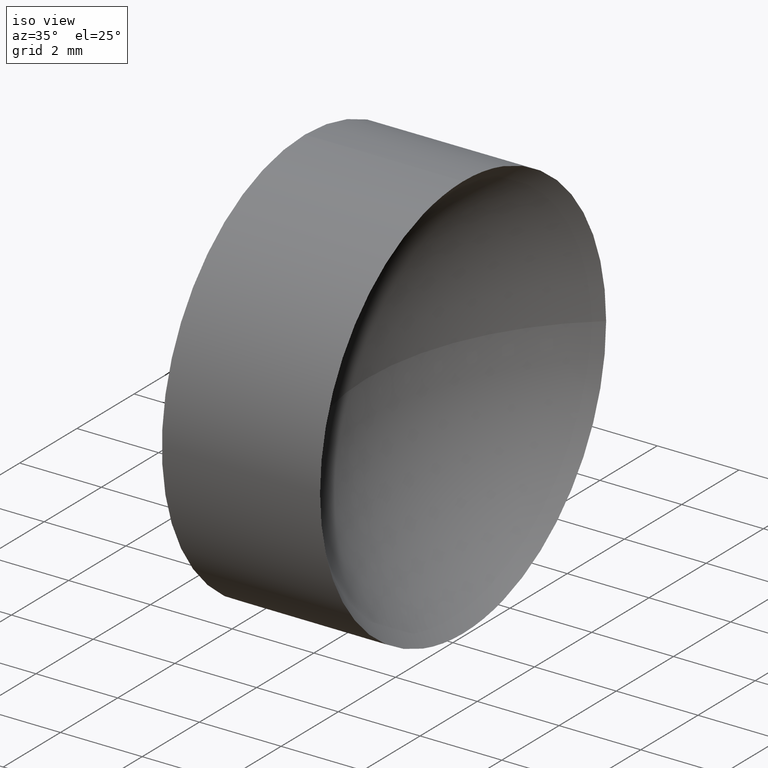
[diagram: clean part render]
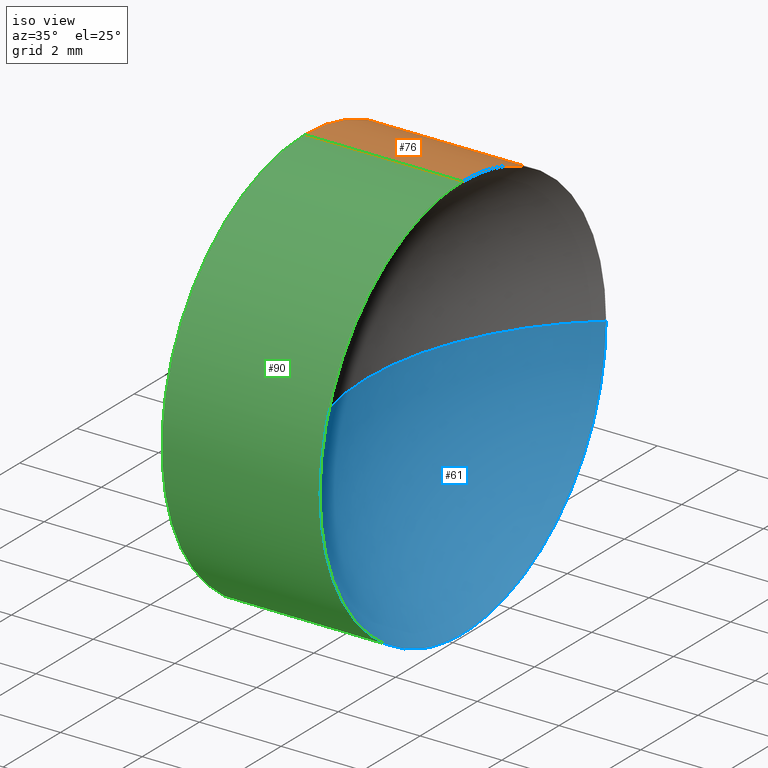
[diagram: same view with three faces highlighted in distinct colors, each labeled with its STEP entity id]
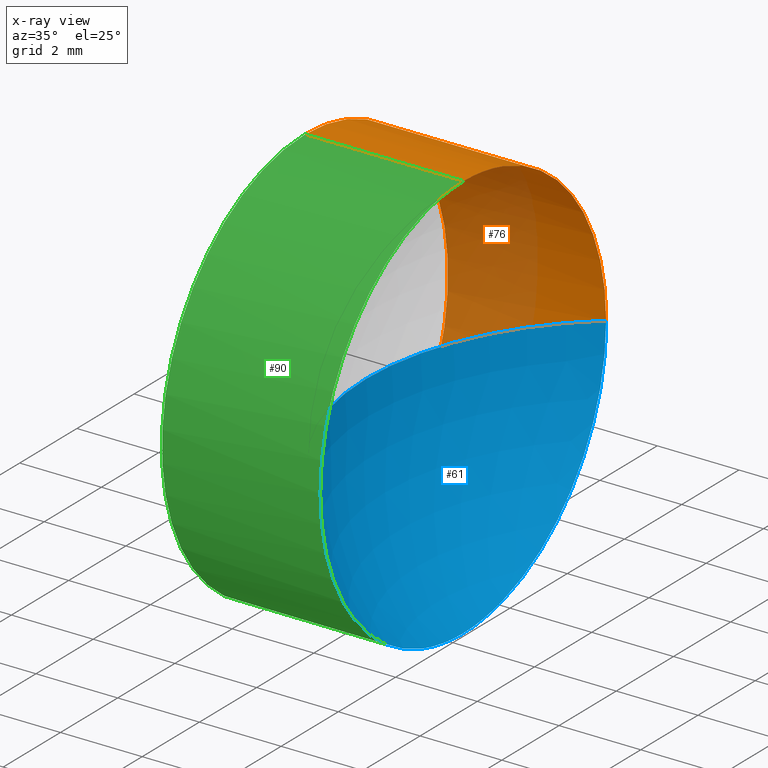
[diagram: x-ray of the same camera — body ghosted, the three highlighted faces saturated]
A machine part, iso view with three faces highlighted in distinct colors.
The next image is the same camera in x-ray (body ghosted, the three faces saturated) — at least one of them is partly hidden behind the body in this view.
Their STEP definitions:

[orange] entity #76 — the highlighted cylindrical surface (partial cylindrical patch) has radius 5 mm, axis along (-1, -0, -0).
#4 = CARTESIAN_POINT ( 'NONE',  ( 42.44986111413682300, 26.08904114919495900, -5.000000000000000900 ) ) ;
#9 = VERTEX_POINT ( 'NONE', #12 ) ;
#12 = CARTESIAN_POINT ( 'NONE',  ( 44.31958549791029600, 26.08904114919495900, -5.000000000000000900 ) ) ;
#15 = CARTESIAN_POINT ( 'NONE',  ( 48.18958549791029400, 26.08904114919495900, 0.0000000000000000000 ) ) ;
#21 = AXIS2_PLACEMENT_3D ( 'NONE', #161, #148, #57 ) ;
#30 = DIRECTION ( 'NONE',  ( -1.000000000000000000, -0.0000000000000000000, -0.0000000000000000000 ) ) ;
#32 = CIRCLE ( 'NONE', #56, 5.000000000000000900 ) ;
#38 = DIRECTION ( 'NONE',  ( 0.0000000000000000000, 0.0000000000000000000, 1.000000000000000000 ) ) ;
#41 = DIRECTION ( 'NONE',  ( -1.000000000000000000, -0.0000000000000000000, -0.0000000000000000000 ) ) ;
#48 = CIRCLE ( 'NONE', #178, 5.000000000000000900 ) ;
#49 = ORIENTED_EDGE ( 'NONE', *, *, #112, .F. ) ;
#51 = CARTESIAN_POINT ( 'NONE',  ( 48.18958549791029400, 31.08904114919495900, 6.123233995736765300E-016 ) ) ;
#56 = AXIS2_PLACEMENT_3D ( 'NONE', #174, #30, #135 ) ;
#57 = DIRECTION ( 'NONE',  ( 0.0000000000000000000, 0.0000000000000000000, 1.000000000000000000 ) ) ;
#58 = VERTEX_POINT ( 'NONE', #51 ) ;
#63 = ORIENTED_EDGE ( 'NONE', *, *, #139, .T. ) ;
#67 = VERTEX_POINT ( 'NONE', #118 ) ;
#69 = LINE ( 'NONE', #132, #121 ) ;
#73 = VECTOR ( 'NONE', #86, 1000.000000000000000 ) ;
#76 = ADVANCED_FACE ( 'NONE', ( #108 ), #82, .T. ) ;
#77 = CIRCLE ( 'NONE', #21, 5.000000000000000900 ) ;
#82 = CYLINDRICAL_SURFACE ( 'NONE', #166, 5.000000000000000900 ) ;
#85 = VERTEX_POINT ( 'NONE', #146 ) ;
#86 = DIRECTION ( 'NONE',  ( -1.000000000000000000, -0.0000000000000000000, -0.0000000000000000000 ) ) ;
#87 = DIRECTION ( 'NONE',  ( 0.0000000000000000000, 0.0000000000000000000, 1.000000000000000000 ) ) ;
#99 = DIRECTION ( 'NONE',  ( -1.000000000000000000, -0.0000000000000000000, -0.0000000000000000000 ) ) ;
#108 = FACE_OUTER_BOUND ( 'NONE', #133, .T. ) ;
#109 = ORIENTED_EDGE ( 'NONE', *, *, #180, .T. ) ;
#112 = EDGE_CURVE ( 'NONE', #123, #67, #69, .T. ) ;
#118 = CARTESIAN_POINT ( 'NONE',  ( 44.31958549791029600, 26.08904114919495900, 5.000000000000000900 ) ) ;
#120 = EDGE_CURVE ( 'NONE', #58, #85, #48, .T. ) ;
#121 = VECTOR ( 'NONE', #149, 1000.000000000000000 ) ;
#123 = VERTEX_POINT ( 'NONE', #130 ) ;
#129 = CARTESIAN_POINT ( 'NONE',  ( 42.44986111413682300, 26.08904114919495900, 0.0000000000000000000 ) ) ;
#130 = CARTESIAN_POINT ( 'NONE',  ( 48.18958549791029400, 26.08904114919495900, 5.000000000000000900 ) ) ;
#132 = CARTESIAN_POINT ( 'NONE',  ( 42.44986111413682300, 26.08904114919495900, 5.000000000000000900 ) ) ;
#133 = EDGE_LOOP ( 'NONE', ( #141, #109, #176, #49, #63 ) ) ;
#135 = DIRECTION ( 'NONE',  ( 0.0000000000000000000, 0.0000000000000000000, 1.000000000000000000 ) ) ;
#139 = EDGE_CURVE ( 'NONE', #123, #58, #32, .T. ) ;
#141 = ORIENTED_EDGE ( 'NONE', *, *, #120, .T. ) ;
#143 = EDGE_CURVE ( 'NONE', #67, #9, #77, .T. ) ;
#146 = CARTESIAN_POINT ( 'NONE',  ( 48.18958549791029400, 26.08904114919495900, -5.000000000000000900 ) ) ;
#148 = DIRECTION ( 'NONE',  ( -1.000000000000000000, -0.0000000000000000000, -0.0000000000000000000 ) ) ;
#149 = DIRECTION ( 'NONE',  ( -1.000000000000000000, -0.0000000000000000000, -0.0000000000000000000 ) ) ;
#152 = LINE ( 'NONE', #4, #73 ) ;
#161 = CARTESIAN_POINT ( 'NONE',  ( 44.31958549791029600, 26.08904114919495900, 0.0000000000000000000 ) ) ;
#166 = AXIS2_PLACEMENT_3D ( 'NONE', #129, #99, #87 ) ;
#174 = CARTESIAN_POINT ( 'NONE',  ( 48.18958549791029400, 26.08904114919495900, 0.0000000000000000000 ) ) ;
#176 = ORIENTED_EDGE ( 'NONE', *, *, #143, .F. ) ;
#178 = AXIS2_PLACEMENT_3D ( 'NONE', #15, #41, #38 ) ;
#180 = EDGE_CURVE ( 'NONE', #85, #9, #152, .T. ) ;

[blue] entity #61 — the highlighted spherical surface has radius 6.4593 mm.
#5 = AXIS2_PLACEMENT_3D ( 'NONE', #88, #160, #28 ) ;
#11 = FACE_OUTER_BOUND ( 'NONE', #92, .T. ) ;
#13 = ORIENTED_EDGE ( 'NONE', *, *, #50, .F. ) ;
#15 = CARTESIAN_POINT ( 'NONE',  ( 48.18958549791029400, 26.08904114919495900, 0.0000000000000000000 ) ) ;
#20 = AXIS2_PLACEMENT_3D ( 'NONE', #104, #117, #71 ) ;
#22 = VERTEX_POINT ( 'NONE', #83 ) ;
#28 = DIRECTION ( 'NONE',  ( 0.0000000000000000000, -1.000000000000000000, -1.224646799147353000E-016 ) ) ;
#38 = DIRECTION ( 'NONE',  ( 0.0000000000000000000, 0.0000000000000000000, 1.000000000000000000 ) ) ;
#41 = DIRECTION ( 'NONE',  ( -1.000000000000000000, -0.0000000000000000000, -0.0000000000000000000 ) ) ;
#44 = ORIENTED_EDGE ( 'NONE', *, *, #110, .T. ) ;
#46 = ORIENTED_EDGE ( 'NONE', *, *, #125, .F. ) ;
#47 = CARTESIAN_POINT ( 'NONE',  ( 52.27884710128582700, 26.08904114919495900, 0.0000000000000000000 ) ) ;
#48 = CIRCLE ( 'NONE', #178, 5.000000000000000900 ) ;
#50 = EDGE_CURVE ( 'NONE', #85, #22, #137, .T. ) ;
#51 = CARTESIAN_POINT ( 'NONE',  ( 48.18958549791029400, 31.08904114919495900, 6.123233995736765300E-016 ) ) ;
#52 = DIRECTION ( 'NONE',  ( -1.000000000000000000, -0.0000000000000000000, -0.0000000000000000000 ) ) ;
#55 = CARTESIAN_POINT ( 'NONE',  ( 45.81958549791029600, 26.08904114919495900, 0.0000000000000000000 ) ) ;
#58 = VERTEX_POINT ( 'NONE', #51 ) ;
#61 = ADVANCED_FACE ( 'NONE', ( #11 ), #78, .F. ) ;
#71 = DIRECTION ( 'NONE',  ( -1.000000000000000000, 0.0000000000000000000, 0.0000000000000000000 ) ) ;
#78 = SPHERICAL_SURFACE ( 'NONE', #184, 6.459261603375526100 ) ;
#79 = ORIENTED_EDGE ( 'NONE', *, *, #120, .F. ) ;
#83 = CARTESIAN_POINT ( 'NONE',  ( 48.18958549791029400, 21.08904114919495900, 0.0000000000000000000 ) ) ;
#85 = VERTEX_POINT ( 'NONE', #146 ) ;
#88 = CARTESIAN_POINT ( 'NONE',  ( 52.27884710128582700, 26.08904114919495900, 0.0000000000000000000 ) ) ;
#89 = CIRCLE ( 'NONE', #20, 6.459261603375524400 ) ;
#92 = EDGE_LOOP ( 'NONE', ( #79, #44, #46, #13 ) ) ;
#100 = VERTEX_POINT ( 'NONE', #55 ) ;
#104 = CARTESIAN_POINT ( 'NONE',  ( 52.27884710128582700, 26.08904114919495900, 0.0000000000000000000 ) ) ;
#110 = EDGE_CURVE ( 'NONE', #58, #100, #114, .T. ) ;
#114 = CIRCLE ( 'NONE', #5, 6.459261603375527900 ) ;
#117 = DIRECTION ( 'NONE',  ( 0.0000000000000000000, 0.0000000000000000000, -1.000000000000000000 ) ) ;
#120 = EDGE_CURVE ( 'NONE', #58, #85, #48, .T. ) ;
#125 = EDGE_CURVE ( 'NONE', #22, #100, #89, .T. ) ;
#126 = AXIS2_PLACEMENT_3D ( 'NONE', #145, #52, #170 ) ;
#127 = DIRECTION ( 'NONE',  ( 0.0000000000000000000, -1.000000000000000000, 0.0000000000000000000 ) ) ;
#137 = CIRCLE ( 'NONE', #126, 5.000000000000000900 ) ;
#145 = CARTESIAN_POINT ( 'NONE',  ( 48.18958549791029400, 26.08904114919495900, 0.0000000000000000000 ) ) ;
#146 = CARTESIAN_POINT ( 'NONE',  ( 48.18958549791029400, 26.08904114919495900, -5.000000000000000900 ) ) ;
#160 = DIRECTION ( 'NONE',  ( 0.0000000000000000000, -1.224646799147353200E-016, 1.000000000000000000 ) ) ;
#167 = DIRECTION ( 'NONE',  ( 0.0000000000000000000, 0.0000000000000000000, 1.000000000000000000 ) ) ;
#170 = DIRECTION ( 'NONE',  ( 0.0000000000000000000, 0.0000000000000000000, 1.000000000000000000 ) ) ;
#178 = AXIS2_PLACEMENT_3D ( 'NONE', #15, #41, #38 ) ;
#184 = AXIS2_PLACEMENT_3D ( 'NONE', #47, #167, #127 ) ;

[green] entity #90 — the highlighted cylindrical surface (partial cylindrical patch) has radius 5 mm, axis along (-1, -0, -0).
#4 = CARTESIAN_POINT ( 'NONE',  ( 42.44986111413682300, 26.08904114919495900, -5.000000000000000900 ) ) ;
#9 = VERTEX_POINT ( 'NONE', #12 ) ;
#12 = CARTESIAN_POINT ( 'NONE',  ( 44.31958549791029600, 26.08904114919495900, -5.000000000000000900 ) ) ;
#14 = ORIENTED_EDGE ( 'NONE', *, *, #50, .T. ) ;
#22 = VERTEX_POINT ( 'NONE', #83 ) ;
#23 = ORIENTED_EDGE ( 'NONE', *, *, #45, .T. ) ;
#24 = DIRECTION ( 'NONE',  ( -1.000000000000000000, -0.0000000000000000000, -0.0000000000000000000 ) ) ;
#35 = FACE_OUTER_BOUND ( 'NONE', #105, .T. ) ;
#36 = ORIENTED_EDGE ( 'NONE', *, *, #112, .T. ) ;
#39 = DIRECTION ( 'NONE',  ( 0.0000000000000000000, 0.0000000000000000000, 1.000000000000000000 ) ) ;
#40 = CIRCLE ( 'NONE', #131, 5.000000000000000900 ) ;
#45 = EDGE_CURVE ( 'NONE', #22, #123, #122, .T. ) ;
#50 = EDGE_CURVE ( 'NONE', #85, #22, #137, .T. ) ;
#52 = DIRECTION ( 'NONE',  ( -1.000000000000000000, -0.0000000000000000000, -0.0000000000000000000 ) ) ;
#53 = CARTESIAN_POINT ( 'NONE',  ( 42.44986111413682300, 26.08904114919495900, 0.0000000000000000000 ) ) ;
#64 = AXIS2_PLACEMENT_3D ( 'NONE', #53, #147, #171 ) ;
#65 = ORIENTED_EDGE ( 'NONE', *, *, #180, .F. ) ;
#67 = VERTEX_POINT ( 'NONE', #118 ) ;
#69 = LINE ( 'NONE', #132, #121 ) ;
#70 = ORIENTED_EDGE ( 'NONE', *, *, #155, .F. ) ;
#72 = CARTESIAN_POINT ( 'NONE',  ( 44.31958549791029600, 26.08904114919495900, 0.0000000000000000000 ) ) ;
#73 = VECTOR ( 'NONE', #86, 1000.000000000000000 ) ;
#83 = CARTESIAN_POINT ( 'NONE',  ( 48.18958549791029400, 21.08904114919495900, 0.0000000000000000000 ) ) ;
#85 = VERTEX_POINT ( 'NONE', #146 ) ;
#86 = DIRECTION ( 'NONE',  ( -1.000000000000000000, -0.0000000000000000000, -0.0000000000000000000 ) ) ;
#90 = ADVANCED_FACE ( 'NONE', ( #35 ), #185, .T. ) ;
#105 = EDGE_LOOP ( 'NONE', ( #65, #14, #23, #36, #70 ) ) ;
#112 = EDGE_CURVE ( 'NONE', #123, #67, #69, .T. ) ;
#118 = CARTESIAN_POINT ( 'NONE',  ( 44.31958549791029600, 26.08904114919495900, 5.000000000000000900 ) ) ;
#119 = AXIS2_PLACEMENT_3D ( 'NONE', #156, #24, #159 ) ;
#121 = VECTOR ( 'NONE', #149, 1000.000000000000000 ) ;
#122 = CIRCLE ( 'NONE', #119, 5.000000000000000900 ) ;
#123 = VERTEX_POINT ( 'NONE', #130 ) ;
#126 = AXIS2_PLACEMENT_3D ( 'NONE', #145, #52, #170 ) ;
#130 = CARTESIAN_POINT ( 'NONE',  ( 48.18958549791029400, 26.08904114919495900, 5.000000000000000900 ) ) ;
#131 = AXIS2_PLACEMENT_3D ( 'NONE', #72, #134, #39 ) ;
#132 = CARTESIAN_POINT ( 'NONE',  ( 42.44986111413682300, 26.08904114919495900, 5.000000000000000900 ) ) ;
#134 = DIRECTION ( 'NONE',  ( -1.000000000000000000, -0.0000000000000000000, -0.0000000000000000000 ) ) ;
#137 = CIRCLE ( 'NONE', #126, 5.000000000000000900 ) ;
#145 = CARTESIAN_POINT ( 'NONE',  ( 48.18958549791029400, 26.08904114919495900, 0.0000000000000000000 ) ) ;
#146 = CARTESIAN_POINT ( 'NONE',  ( 48.18958549791029400, 26.08904114919495900, -5.000000000000000900 ) ) ;
#147 = DIRECTION ( 'NONE',  ( -1.000000000000000000, -0.0000000000000000000, -0.0000000000000000000 ) ) ;
#149 = DIRECTION ( 'NONE',  ( -1.000000000000000000, -0.0000000000000000000, -0.0000000000000000000 ) ) ;
#152 = LINE ( 'NONE', #4, #73 ) ;
#155 = EDGE_CURVE ( 'NONE', #9, #67, #40, .T. ) ;
#156 = CARTESIAN_POINT ( 'NONE',  ( 48.18958549791029400, 26.08904114919495900, 0.0000000000000000000 ) ) ;
#159 = DIRECTION ( 'NONE',  ( 0.0000000000000000000, 0.0000000000000000000, 1.000000000000000000 ) ) ;
#170 = DIRECTION ( 'NONE',  ( 0.0000000000000000000, 0.0000000000000000000, 1.000000000000000000 ) ) ;
#171 = DIRECTION ( 'NONE',  ( 0.0000000000000000000, 0.0000000000000000000, 1.000000000000000000 ) ) ;
#180 = EDGE_CURVE ( 'NONE', #85, #9, #152, .T. ) ;
#185 = CYLINDRICAL_SURFACE ( 'NONE', #64, 5.000000000000000900 ) ;